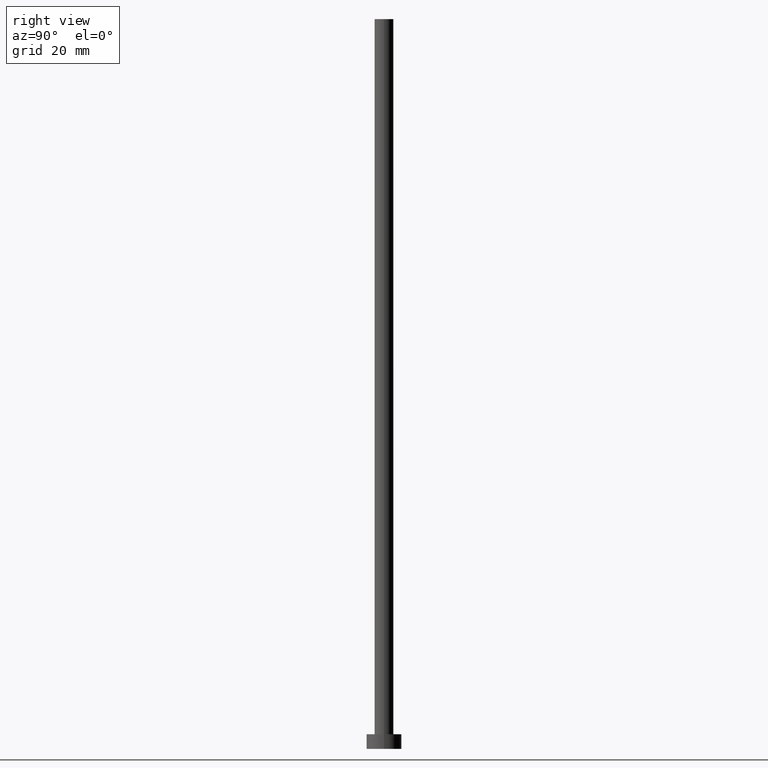
[diagram: clean part render]
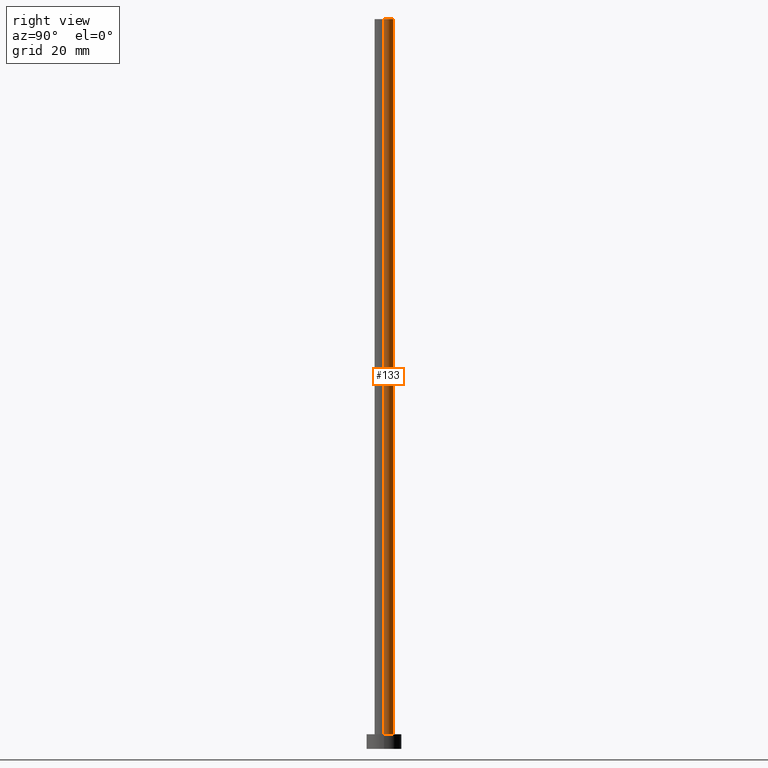
[diagram: same view with one face highlighted and labeled with its STEP entity id]
A machine part, right view. The second image highlights one B-rep face of the part: STEP entity #133.
In plain terms, the highlighted cylindrical surface (edge-blend (fillet) strip) has radius 3.25 mm, axis along (-0, -0, -1).
Its self-contained STEP definition (entity closure, byte-faithful):
#8 = CYLINDRICAL_SURFACE ( 'NONE', #174, 3.250000000000000444 ) ;
#22 = DIRECTION ( 'NONE',  ( -0.000000000000000000, -0.000000000000000000, -1.000000000000000000 ) ) ;
#42 = LINE ( 'NONE', #98, #115 ) ;
#48 = CARTESIAN_POINT ( 'NONE',  ( -3.250000000000000444, 0.000000000000000000, 250.0000000000000000 ) ) ;
#62 = CARTESIAN_POINT ( 'NONE',  ( -3.250000000000000444, 0.000000000000000000, 250.0000000000000000 ) ) ;
#66 = CARTESIAN_POINT ( 'NONE',  ( 0.000000000000000000, 0.000000000000000000, 5.000000000000000000 ) ) ;
#67 = CARTESIAN_POINT ( 'NONE',  ( 3.250000000000000444, 3.980102097228898231E-16, 250.0000000000000000 ) ) ;
#70 = EDGE_CURVE ( 'NONE', #219, #253, #247, .T. ) ;
#82 = VECTOR ( 'NONE', #120, 1000.000000000000000 ) ;
#83 = DIRECTION ( 'NONE',  ( 0.000000000000000000, 0.000000000000000000, 1.000000000000000000 ) ) ;
#84 = EDGE_CURVE ( 'NONE', #233, #199, #101, .T. ) ;
#88 = DIRECTION ( 'NONE',  ( -0.000000000000000000, -0.000000000000000000, -1.000000000000000000 ) ) ;
#98 = CARTESIAN_POINT ( 'NONE',  ( 3.250000000000000444, 3.980102097228898231E-16, 250.0000000000000000 ) ) ;
#99 = DIRECTION ( 'NONE',  ( 0.000000000000000000, 0.000000000000000000, 1.000000000000000000 ) ) ;
#101 = CIRCLE ( 'NONE', #141, 3.250000000000000444 ) ;
#115 = VECTOR ( 'NONE', #22, 1000.000000000000000 ) ;
#120 = DIRECTION ( 'NONE',  ( -0.000000000000000000, -0.000000000000000000, -1.000000000000000000 ) ) ;
#131 = FACE_OUTER_BOUND ( 'NONE', #231, .T. ) ;
#133 = ADVANCED_FACE ( 'NONE', ( #131 ), #8, .T. ) ;
#136 = ORIENTED_EDGE ( 'NONE', *, *, #225, .F. ) ;
#137 = ORIENTED_EDGE ( 'NONE', *, *, #84, .T. ) ;
#141 = AXIS2_PLACEMENT_3D ( 'NONE', #66, #83, #165 ) ;
#161 = CARTESIAN_POINT ( 'NONE',  ( -3.250000000000000444, 0.000000000000000000, 5.000000000000000000 ) ) ;
#165 = DIRECTION ( 'NONE',  ( 1.000000000000000000, 0.000000000000000000, 0.000000000000000000 ) ) ;
#171 = DIRECTION ( 'NONE',  ( -1.000000000000000000, 0.000000000000000000, 0.000000000000000000 ) ) ;
#174 = AXIS2_PLACEMENT_3D ( 'NONE', #226, #88, #171 ) ;
#195 = ORIENTED_EDGE ( 'NONE', *, *, #70, .F. ) ;
#199 = VERTEX_POINT ( 'NONE', #161 ) ;
#200 = DIRECTION ( 'NONE',  ( 1.000000000000000000, 0.000000000000000000, 0.000000000000000000 ) ) ;
#201 = CARTESIAN_POINT ( 'NONE',  ( 3.250000000000000444, 3.980102097228898231E-16, 5.000000000000000000 ) ) ;
#214 = ORIENTED_EDGE ( 'NONE', *, *, #232, .T. ) ;
#219 = VERTEX_POINT ( 'NONE', #67 ) ;
#221 = AXIS2_PLACEMENT_3D ( 'NONE', #236, #99, #200 ) ;
#225 = EDGE_CURVE ( 'NONE', #253, #199, #234, .T. ) ;
#226 = CARTESIAN_POINT ( 'NONE',  ( 0.000000000000000000, 0.000000000000000000, 250.0000000000000000 ) ) ;
#231 = EDGE_LOOP ( 'NONE', ( #195, #214, #137, #136 ) ) ;
#232 = EDGE_CURVE ( 'NONE', #219, #233, #42, .T. ) ;
#233 = VERTEX_POINT ( 'NONE', #201 ) ;
#234 = LINE ( 'NONE', #48, #82 ) ;
#236 = CARTESIAN_POINT ( 'NONE',  ( 0.000000000000000000, 0.000000000000000000, 250.0000000000000000 ) ) ;
#247 = CIRCLE ( 'NONE', #221, 3.250000000000000444 ) ;
#253 = VERTEX_POINT ( 'NONE', #62 ) ;